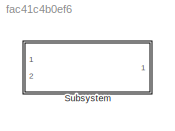
MODEL slx_fac41c4b0ef6
KIND library
CONFIG AbsTol = auto
CONFIG EnableMultiTasking = off
CONFIG FixedStep = auto
CONFIG MaxStep = auto
CONFIG MinStep = auto
CONFIG RelTol = 1e-3
CONFIG SampleTimeConstraint = Unconstrained
CONFIG Solver = VariableStepAuto
CONFIG SolverName = VariableStepAuto
CONFIG StartTime = 0.0
CONFIG StopTime = 10.0
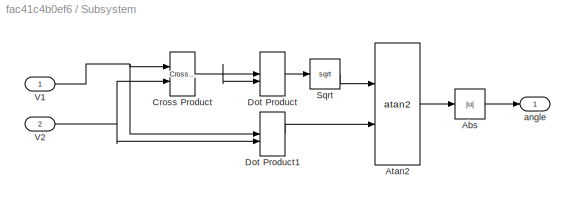
BLOCK [SubSystem] Subsystem
  Ports = [2, 1]
  RequestExecContextInheritance = off
BLOCK [Abs] Subsystem/Abs
  SaturateOnIntegerOverflow = off
BLOCK [Trigonometry] Subsystem/Atan2
  Operator = atan2
  Ports = [2, 1]
BLOCK [Reference] Subsystem/Cross Product  REF=vrlib/Utilities/Cross Product
  Ports = [2, 1]
  SourceBlock = vrlib/Utilities/Cross Product
  SourceProductBaseCode = SL
  SourceType = Cross Product
BLOCK [DotProduct] Subsystem/Dot Product
  OutDataTypeStr = Inherit: Inherit via internal rule
BLOCK [DotProduct] Subsystem/Dot Product1
  OutDataTypeStr = Inherit: Inherit via internal rule
BLOCK [Sqrt] Subsystem/Sqrt
BLOCK [Inport] Subsystem/V1
BLOCK [Inport] Subsystem/V2
  Port = 2
BLOCK [Outport] Subsystem/angle
LINE Subsystem/Abs:1 -> Subsystem/angle:1
LINE Subsystem/Atan2:1 -> Subsystem/Abs:1
NET Subsystem/Cross Product:1 -> Subsystem/Dot Product:1, Subsystem/Dot Product:2
LINE Subsystem/Dot Product1:1 -> Subsystem/Atan2:2
LINE Subsystem/Dot Product:1 -> Subsystem/Sqrt:1
LINE Subsystem/Sqrt:1 -> Subsystem/Atan2:1
NET Subsystem/V1:1 -> Subsystem/Cross Product:1, Subsystem/Dot Product1:1
NET Subsystem/V2:1 -> Subsystem/Cross Product:2, Subsystem/Dot Product1:2
note: NET lines group one-source signal fan-out (src -> all destinations, sorted); 1:1 wires keep LINE
